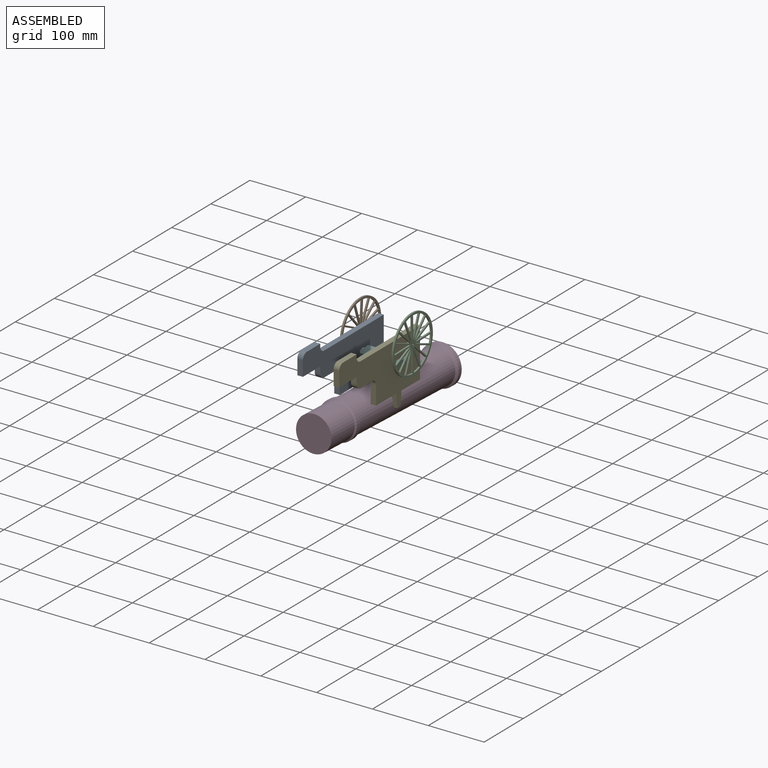
[diagram: assembled view]
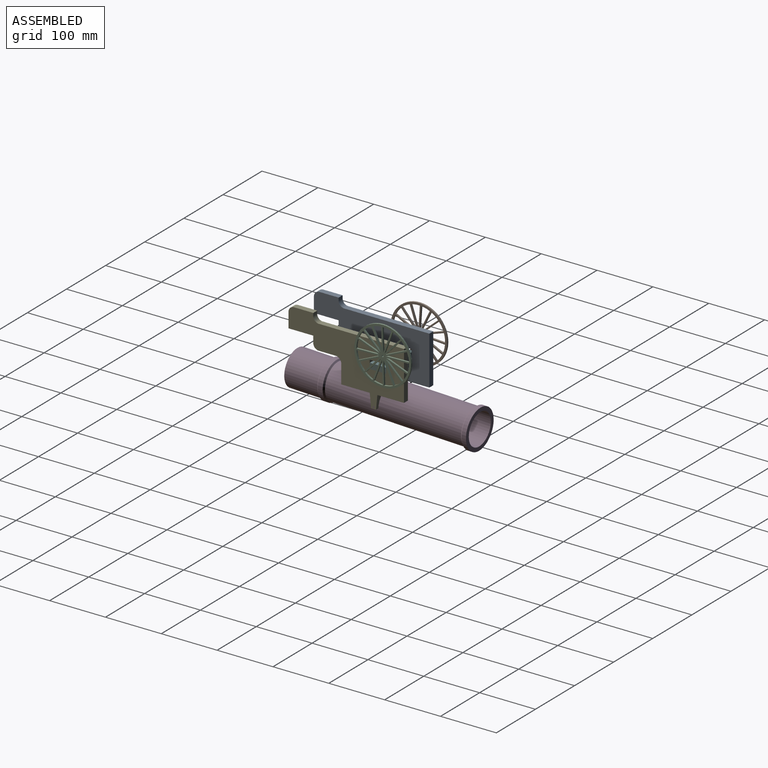
[diagram: assembled view, second angle]
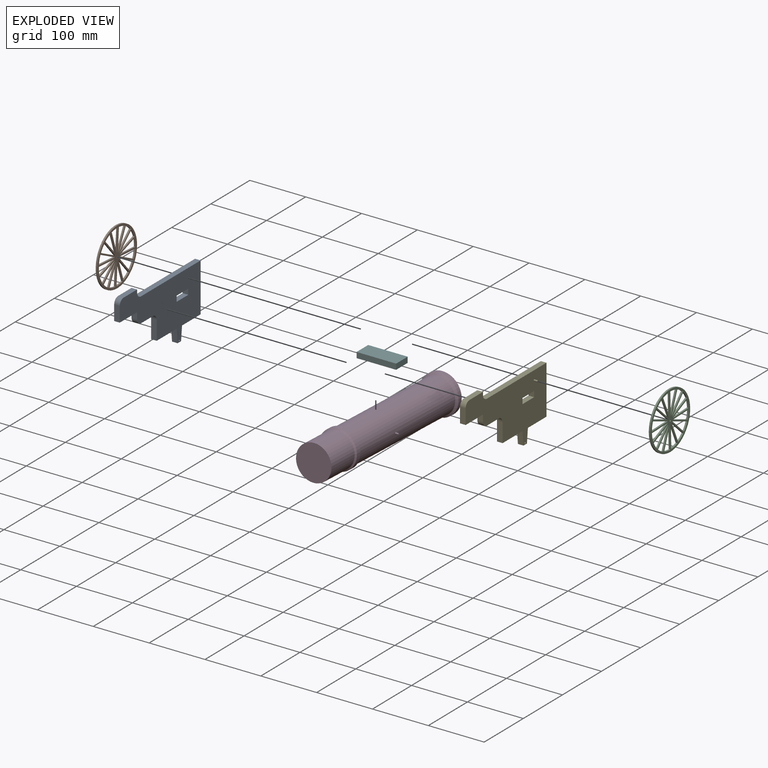
[diagram: exploded view]
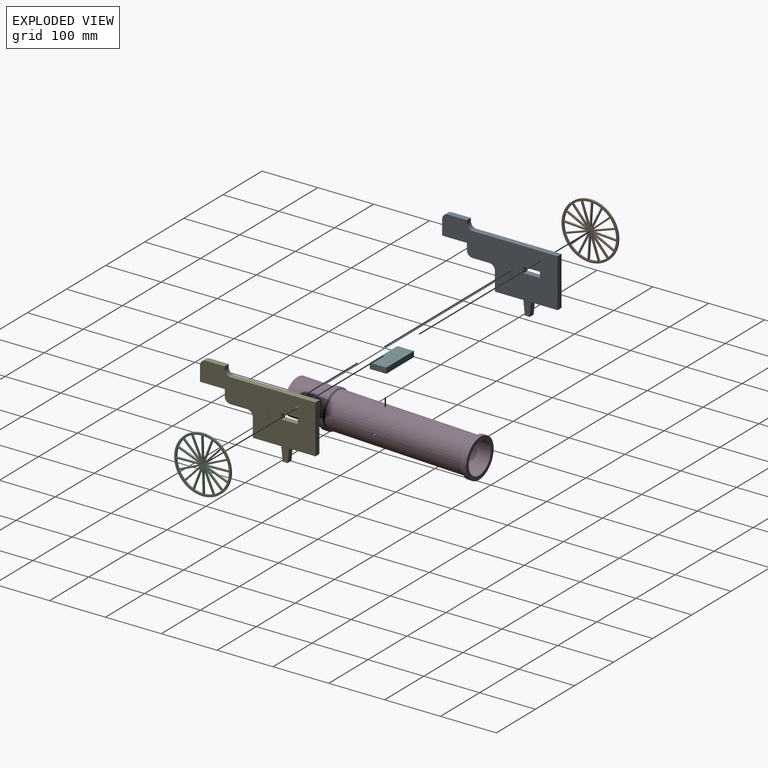
[diagram: exploded view, second angle]
ASSEMBLY  parts=6 mates=5
PART A: 27 faces, bbox 18x126.5x206.8 mm
  f0: plane 206.76x126.55mm, normal (1,0,0), area 13579.6mm2, adj f2,f3,f4,f5,f6,f7,f8,f9
  f1: plane 206.76x126.55mm, normal (-1,0,0), area 13586.7mm2, adj f2,f3,f4,f5,f6,f7,f8,f9
  f2: plane 24.35x10mm, normal (0,0.1,1), area 244.7mm2, adj f0,f1,f3,f19
  f3: plane 51.04x10mm, normal (0,1,0), area 510.4mm2, adj f0,f1,f2,f4
  f4: plane 33.64x10mm, normal (0,0,1), area 336.4mm2, adj f0,f1,f3,f5
  f5: cylinder r=10mm len=10mm, axis (-1,0,0), area 157.1mm2, adj f0,f1,f4,f6
  f6: plane 30.12x10mm, normal (0,1,0), area 301.2mm2, adj f0,f1,f5,f7
  f7: cylinder r=10mm len=10mm, axis (-1,0,0), area 157.1mm2, adj f0,f1,f6,f8
  f8: plane 11.82x10mm, normal (0,0,1), area 118.2mm2, adj f0,f1,f7,f9
  f9: plane 44.38x10mm, normal (0,1,0), area 443.8mm2, adj f0,f1,f8,f10
  f10: plane 26.74x10mm, normal (0,0,1), area 267.4mm2, adj f0,f1,f9,f11
  f11: cylinder r=10mm len=10mm, axis (-1,0,0), area 157.1mm2, adj f0,f1,f10,f12
  f12: plane 34.38x10mm, normal (0,-1,0), area 343.8mm2, adj f0,f1,f11,f13
  f13: plane 10x4.92mm, normal (0,0,-1), area 49.2mm2, adj f0,f1,f12,f14
  f14: cylinder r=10mm len=10mm, axis (-1,0,0), area 157.1mm2, adj f0,f1,f13,f15
  f15: plane 152.38x10mm, normal (0,-1,0), area 1523.8mm2, adj f0,f1,f14,f16
  f16: plane 87.27x10mm, normal (0,0,-1), area 872.7mm2, adj f0,f1,f15,f17
  f17: plane 47.53x10mm, normal (0,1,0), area 475.3mm2, adj f0,f1,f16,f18
  f18: plane 24.35x10mm, normal (0,0.1,-1), area 244.7mm2, adj f0,f1,f17,f19
  f19: plane 10x8.86mm, normal (0,1,0), area 88.6mm2, adj f0,f1,f2,f18
  f20: cylinder r=1.5mm len=10mm, axis (-1,0,0), area 94.2mm2, adj f0,f1
  f21: plane 10x10mm, normal (0,0,-1), area 100mm2, adj f0,f1,f22,f24
  f22: plane 29.56x10mm, normal (0,1,0), area 295.6mm2, adj f0,f1,f21,f23
  f23: plane 10x10mm, normal (0,0,1), area 100mm2, adj f0,f1,f22,f24
  f24: plane 29.56x10mm, normal (0,-1,0), area 295.6mm2, adj f0,f1,f21,f23
  f25: cylinder r=1.5mm len=8mm, axis (-1,0,0), area 75.4mm2, adj f0,f26
  f26: plane 3x3mm, normal (1,0,0), area 7.1mm2, adj f25
PART B: 52 faces, bbox 101.6x101.6x3 mm
  f0: cylinder r=47.08mm len=15.57mm, axis (0,0,-1), area 47.8mm2, adj f1,f32,f50,f51
  f1: plane 40.68x3mm, normal (0,-1,0), area 122mm2, adj f0,f32,f50,f51
  f2: cylinder r=47.08mm len=15.57mm, axis (0,0,-1), area 47.8mm2, adj f3,f33,f50,f51
  f3: plane 40.68x3mm, normal (-1,0,0), area 122mm2, adj f2,f33,f50,f51
  f4: cylinder r=47.08mm len=15.57mm, axis (0,0,-1), area 47.8mm2, adj f5,f34,f50,f51
  f5: plane 40.68x3mm, normal (0,1,0), area 122mm2, adj f4,f34,f50,f51
  f6: cylinder r=47.08mm len=15.57mm, axis (0,0,-1), area 47.8mm2, adj f7,f35,f50,f51
  f7: plane 40.68x3mm, normal (1,0,0), area 122mm2, adj f6,f35,f50,f51
  f8: cylinder r=47.08mm len=13.2mm, axis (0,0,-1), area 47.8mm2, adj f9,f36,f50,f51
  f9: plane 28.76x28.76mm, normal (0.71,0.71,0), area 122mm2, adj f8,f36,f50,f51
  f10: cylinder r=47.08mm len=13.2mm, axis (0,0,-1), area 47.8mm2, adj f11,f37,f50,f51
  f11: plane 28.76x28.76mm, normal (-0.71,0.71,0), area 122mm2, adj f10,f37,f50,f51
  f12: cylinder r=47.08mm len=13.2mm, axis (0,0,-1), area 47.8mm2, adj f13,f38,f50,f51
  f13: plane 28.76x28.76mm, normal (-0.71,-0.71,0), area 122mm2, adj f12,f38,f50,f51
  f14: cylinder r=47.08mm len=13.2mm, axis (0,0,-1), area 47.8mm2, adj f15,f39,f50,f51
  f15: plane 28.76x28.76mm, normal (0.71,-0.71,0), area 122mm2, adj f14,f39,f50,f51
  f16: cylinder r=47.08mm len=15.57mm, axis (0,0,-1), area 47.8mm2, adj f17,f40,f50,f51
  f17: plane 37.58x15.57mm, normal (-0.92,0.38,0), area 122mm2, adj f16,f40,f50,f51
  f18: cylinder r=47.08mm len=13.2mm, axis (0,0,-1), area 47.8mm2, adj f19,f41,f50,f51
  f19: plane 37.58x15.57mm, normal (-0.38,0.92,0), area 122mm2, adj f18,f41,f50,f51
  f20: cylinder r=47.08mm len=15.57mm, axis (0,0,-1), area 47.8mm2, adj f21,f42,f50,f51
  f21: plane 37.58x15.57mm, normal (0.38,0.92,0), area 122mm2, adj f20,f42,f50,f51
  f22: cylinder r=47.08mm len=13.2mm, axis (0,0,-1), area 47.8mm2, adj f23,f43,f50,f51
  f23: plane 37.58x15.57mm, normal (0.92,0.38,0), area 122mm2, adj f22,f43,f50,f51
  f24: cylinder r=47.08mm len=15.57mm, axis (0,0,-1), area 47.8mm2, adj f25,f44,f50,f51
  f25: plane 37.58x15.57mm, normal (0.92,-0.38,0), area 122mm2, adj f24,f44,f50,f51
  f26: cylinder r=47.08mm len=13.2mm, axis (0,0,-1), area 47.8mm2, adj f27,f45,f50,f51
  f27: plane 37.58x15.57mm, normal (0.38,-0.92,0), area 122mm2, adj f26,f45,f50,f51
  f28: cylinder r=47.08mm len=13.2mm, axis (0,0,-1), area 47.8mm2, adj f29,f46,f50,f51
  f29: plane 37.58x15.57mm, normal (-0.92,-0.38,0), area 122mm2, adj f28,f46,f50,f51
  f30: cylinder r=47.08mm len=15.57mm, axis (0,0,-1), area 47.8mm2, adj f31,f48,f50,f51
  f31: plane 37.58x15.57mm, normal (-0.38,-0.92,0), area 122mm2, adj f30,f48,f50,f51
  f32: plane 37.58x15.57mm, normal (-0.38,0.92,0), area 122mm2, adj f0,f1,f50,f51
  f33: plane 37.58x15.57mm, normal (0.92,0.38,0), area 122mm2, adj f2,f3,f50,f51
  f34: plane 37.58x15.57mm, normal (0.38,-0.92,0), area 122mm2, adj f4,f5,f50,f51
  f35: plane 37.58x15.57mm, normal (-0.92,-0.38,0), area 122mm2, adj f6,f7,f50,f51
  f36: plane 37.58x15.57mm, normal (-0.38,-0.92,0), area 122mm2, adj f8,f9,f50,f51
  f37: plane 37.58x15.57mm, normal (0.92,-0.38,0), area 122mm2, adj f10,f11,f50,f51
  f38: plane 37.58x15.57mm, normal (0.38,0.92,0), area 122mm2, adj f12,f13,f50,f51
  f39: plane 37.58x15.57mm, normal (-0.92,0.38,0), area 122mm2, adj f14,f15,f50,f51
  f40: plane 40.68x3mm, normal (1,0,0), area 122mm2, adj f16,f17,f50,f51
  f41: plane 28.76x28.76mm, normal (0.71,-0.71,0), area 122mm2, adj f18,f19,f50,f51
  f42: plane 40.68x3mm, normal (0,-1,0), area 122mm2, adj f20,f21,f50,f51
  f43: plane 28.76x28.76mm, normal (-0.71,-0.71,0), area 122mm2, adj f22,f23,f50,f51
  f44: plane 40.68x3mm, normal (-1,0,0), area 122mm2, adj f24,f25,f50,f51
  f45: plane 28.76x28.76mm, normal (-0.71,0.71,0), area 122mm2, adj f26,f27,f50,f51
  f46: plane 28.76x28.76mm, normal (0.71,0.71,0), area 122mm2, adj f28,f29,f50,f51
  f47: cylinder r=1.5mm len=3mm, axis (0,0,-1), area 28.3mm2, adj f50,f51
  f48: plane 40.68x3mm, normal (0,1,0), area 122mm2, adj f30,f31,f50,f51
  f49: cylinder r=50.8mm len=101.6mm, axis (0,0,-1), area 957.6mm2, adj f50,f51
  f50: plane 101.6x101.6mm, normal (0,0,1), area 2920.7mm2, adj f0,f1,f2,f3,f4,f5,f6,f7
  f51: plane 101.6x101.6mm, normal (0,0,-1), area 2920.7mm2, adj f0,f1,f2,f3,f4,f5,f6,f7
PART C: same geometry as B
PART D: 15 faces, bbox 75x328.2x70.8 mm
  f0: cylinder r=31.77mm len=243.82mm, axis (0,-1,0), area 48652.2mm2, adj f2,f3,f10,f11
  f1: cylinder r=35.39mm len=70.78mm, axis (0,-1,0), area 1736.3mm2, adj f2,f8
  f2: cone r=35.39mm half-angle=45deg, axis (0,1,0), area 1081.3mm2, adj f0,f1
  f3: cone r=31.77mm half-angle=45deg, axis (0,-1,0), area 707.9mm2, adj f0,f4
  f4: cylinder r=34.18mm len=68.37mm, axis (0,-1,0), area 1902.6mm2, adj f3,f5
  f5: cone r=34.18mm half-angle=45deg, axis (0,1,0), area 707.9mm2, adj f4,f6
  f6: cylinder r=31.77mm len=63.54mm, axis (0,-1,0), area 11827.9mm2, adj f5,f7
  f7: plane 63.54x63.54mm, normal (0,-1,0), area 3170.4mm2, adj f6
  f8: plane 70.78x70.78mm, normal (0,1,0), area 1434.4mm2, adj f1,f13
  f9: plane 3x3mm, normal (-1,0,0), area 7.1mm2, adj f10
  f10: cylinder r=1.5mm len=5.77mm, axis (-1,0,0), area 54.2mm2, adj f0,f9
  f11: cylinder r=1.5mm len=5.77mm, axis (-1,0,0), area 54.2mm2, adj f0,f12
  f12: plane 3x3mm, normal (1,0,0), area 7.1mm2, adj f11
  f13: cylinder r=28.21mm len=314.1mm, axis (0,1,0), area 55679.7mm2, adj f8,f14
  f14: plane 56.43x56.43mm, normal (0,1,0), area 2500.6mm2, adj f13
PART E: 27 faces, bbox 16.5x126.5x206.8 mm
  f0: plane 206.76x126.55mm, normal (1,0,0), area 13586.7mm2, adj f2,f3,f4,f5,f6,f7,f8,f9
  f1: plane 206.76x126.55mm, normal (-1,0,0), area 13579.6mm2, adj f2,f3,f4,f5,f6,f7,f8,f9
  f2: plane 24.35x10mm, normal (0,0.1,1), area 244.7mm2, adj f0,f1,f3,f19
  f3: plane 51.04x10mm, normal (0,1,0), area 510.4mm2, adj f0,f1,f2,f4
  f4: plane 33.64x10mm, normal (0,0,1), area 336.4mm2, adj f0,f1,f3,f5
  f5: cylinder r=10mm len=10mm, axis (-1,0,0), area 157.1mm2, adj f0,f1,f4,f6
  f6: plane 30.12x10mm, normal (0,1,0), area 301.2mm2, adj f0,f1,f5,f7
  f7: cylinder r=10mm len=10mm, axis (-1,0,0), area 157.1mm2, adj f0,f1,f6,f8
  f8: plane 11.82x10mm, normal (0,0,1), area 118.2mm2, adj f0,f1,f7,f9
  f9: plane 44.38x10mm, normal (0,1,0), area 443.8mm2, adj f0,f1,f8,f10
  f10: plane 26.74x10mm, normal (0,0,1), area 267.4mm2, adj f0,f1,f9,f11
  f11: cylinder r=10mm len=10mm, axis (-1,0,0), area 157.1mm2, adj f0,f1,f10,f12
  f12: plane 34.38x10mm, normal (0,-1,0), area 343.8mm2, adj f0,f1,f11,f13
  f13: plane 10x4.92mm, normal (0,0,-1), area 49.2mm2, adj f0,f1,f12,f14
  f14: cylinder r=10mm len=10mm, axis (-1,0,0), area 157.1mm2, adj f0,f1,f13,f15
  f15: plane 152.38x10mm, normal (0,-1,0), area 1523.8mm2, adj f0,f1,f14,f16
  f16: plane 87.27x10mm, normal (0,0,-1), area 872.7mm2, adj f0,f1,f15,f17
  f17: plane 47.53x10mm, normal (0,1,0), area 475.3mm2, adj f0,f1,f16,f18
  f18: plane 24.35x10mm, normal (0,0.1,-1), area 244.7mm2, adj f0,f1,f17,f19
  f19: plane 10x8.86mm, normal (0,1,0), area 88.6mm2, adj f0,f1,f2,f18
  f20: cylinder r=1.5mm len=10mm, axis (-1,0,0), area 94.2mm2, adj f0,f1
  f21: plane 10x10mm, normal (0,0,-1), area 100mm2, adj f0,f1,f22,f24
  f22: plane 29.56x10mm, normal (0,1,0), area 295.6mm2, adj f0,f1,f21,f23
  f23: plane 10x10mm, normal (0,0,1), area 100mm2, adj f0,f1,f22,f24
  f24: plane 29.56x10mm, normal (0,-1,0), area 295.6mm2, adj f0,f1,f21,f23
  f25: cylinder r=1.5mm len=6.5mm, axis (1,0,0), area 61.3mm2, adj f1,f26
  f26: plane 3x3mm, normal (-1,0,0), area 7.1mm2, adj f25
PART F: 6 faces, bbox 29.6x10x70.8 mm
  f0: plane 70.78x10mm, normal (-1,0,0), area 707.8mm2, adj f1,f3,f4,f5
  f1: plane 70.78x29.56mm, normal (0,-1,0), area 2092.3mm2, adj f0,f2,f4,f5
  f2: plane 70.78x10mm, normal (1,0,0), area 707.8mm2, adj f1,f3,f4,f5
  f3: plane 70.78x29.56mm, normal (0,1,0), area 2092.3mm2, adj f0,f2,f4,f5
  f4: plane 29.56x10mm, normal (0,0,1), area 295.6mm2, adj f0,f1,f2,f3
  f5: plane 29.56x10mm, normal (0,0,-1), area 295.6mm2, adj f0,f1,f2,f3
PLACE A rot(axis=(0,0.71,-0.71),180deg) t=(-122.1,218.47,42.25)mm fixed
PLACE B rot(axis=(-0.5,0.7,-0.5),109.8deg) t=(-143.1,42.99,51.02)mm
PLACE C rot(axis=(-0.57,-0.59,0.57),119.1deg) t=(-47.6,42.99,51.02)mm
PLACE D rot(axis=(-1,0,0),2.2deg) t=(-94.6,20.78,-23.49)mm
PLACE E rot(axis=(0,-0.71,0.71),180deg) t=(-57.1,218.47,42.25)mm fixed
PLACE F rot(axis=(0.58,-0.58,-0.58),120deg) t=(-57.1,24.54,17.36)mm
MATE revolute A.f20 <-> D.f10  axis (-1,0,0) through (-132.1,20.11,-41.18)mm
MATE revolute A.f25 <-> B.f0  axis (1,0,0) through (-140.1,42.99,51.02)mm
MATE fastened E.f1 <-> F.f5  axis (1,0,0) through (-57.1,28.05,23.76)mm
MATE revolute E.f25 <-> C.f0  axis (1,0,0) through (-50.6,42.99,51.02)mm
MATE revolute E.f20 <-> D.f10  axis (1,0,0) through (-57.1,20.11,-41.18)mm
